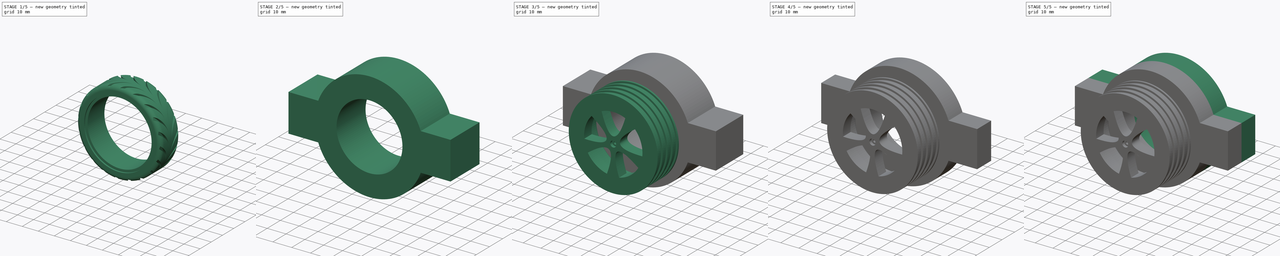
[diagram: build sequence overview — one tinted view per stage of 5, left to right]
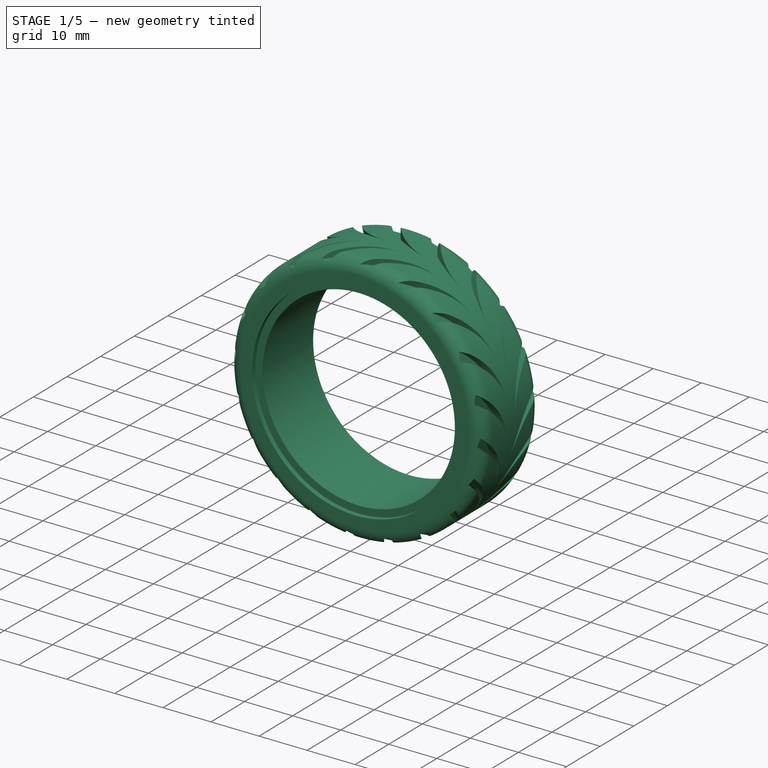
[diagram: stage 1 of 5 — iso view after this stage's code; geometry added in this stage tinted green]
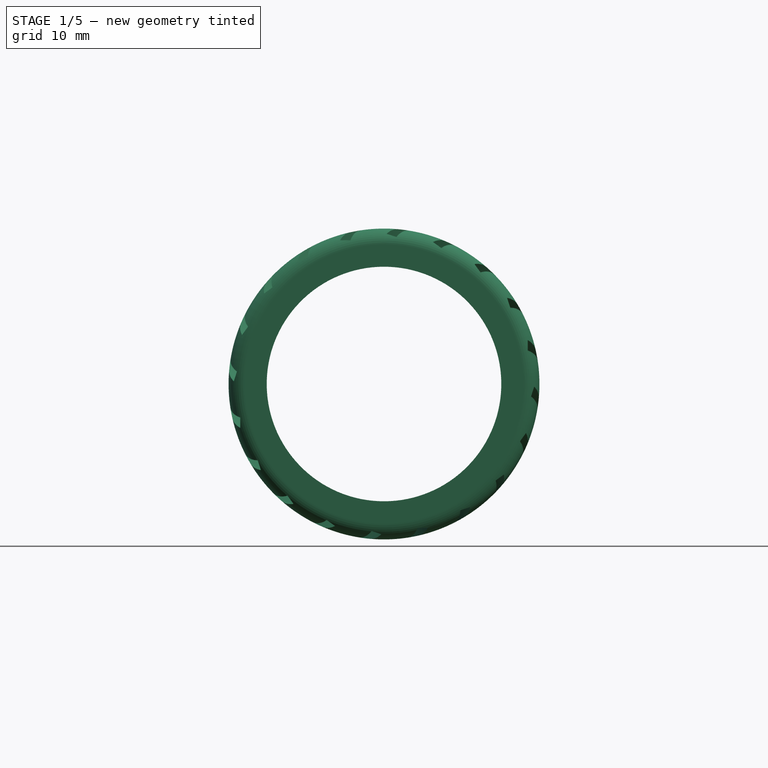
[diagram: stage 1 of 5 — front view after this stage's code; geometry added in this stage tinted green]
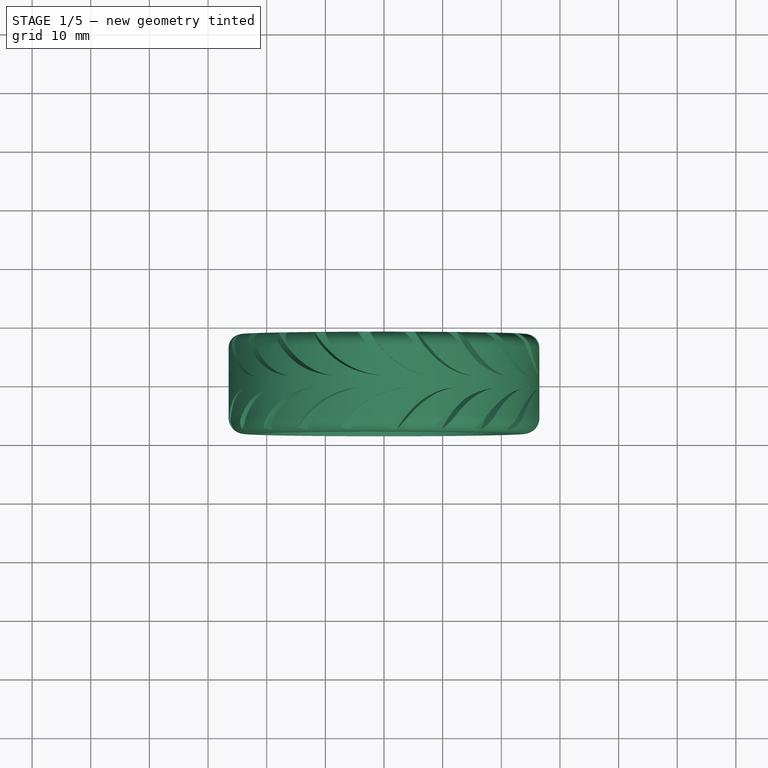
[diagram: stage 1 of 5 — top view after this stage's code; geometry added in this stage tinted green]
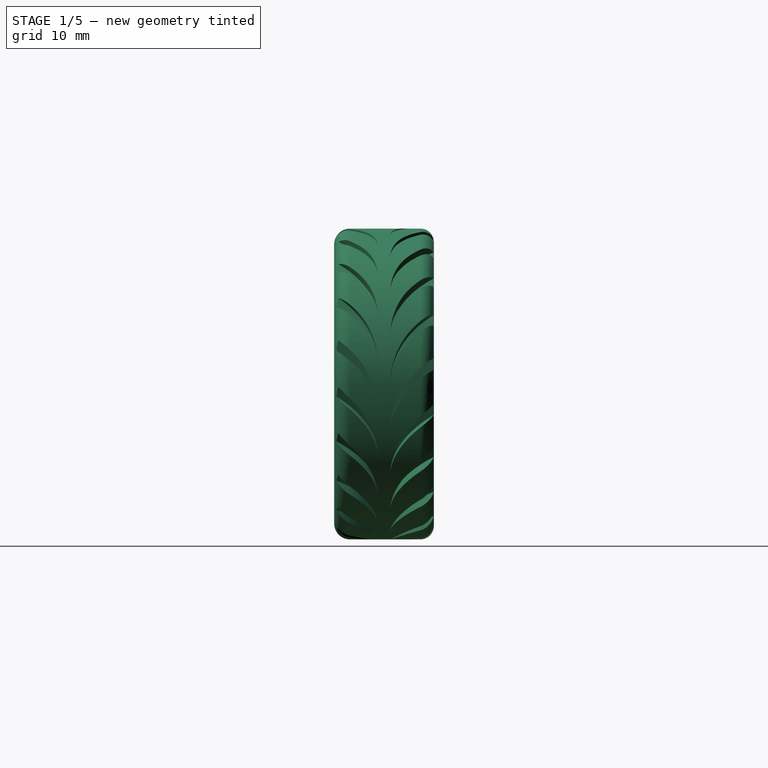
[diagram: stage 1 of 5 — right view after this stage's code; geometry added in this stage tinted green]
FCSTD DOCUMENT  (FreeCAD 0.18R16146 (Git))
Label: 03_MinibotTyre
License: All rights reserved
LicenseURL: http://en.wikipedia.org/wiki/All_rights_reserved
objects: Part::Cut×6, Sketcher::SketchObject×5, Part::MultiFuse×5, Part::Box×5, PartDesign::Body×4, PartDesign::FeatureBase×3, PartDesign::Revolution×2, PartDesign::Pad×2, Part::Cylinder×2, Part::Feature×2, Part::Chamfer×2, PartDesign::Pocket×1, PartDesign::PolarPattern×1, Part::FeaturePython×1, Part::Part2DObjectPython×1, App::DocumentObjectGroup×1
note: 47 computed .brp shape members not serialized (recipe doc carries the construction recipe); baked Part::Feature solids carry a one-line shape summary decoded from their .brp

FEATURE [PartDesign::Body] Body007  label="Wheel"
  Group = -> [Sketch009,Revolution,Sketch010,Pocket,PolarPattern]
  Origin = -> Origin007
  Tip = -> PolarPattern
FEATURE [Sketcher::SketchObject] Sketch011
  MapMode = 5
  Placement = pos=(0,0,0) rot=(0.57735,0.57735,0.57735;2.0944rad)
  Support = -> [YZ_Plane]
  sketch-geometry (10):
    g0: LineSegment StartX=-31 StartY=20 StartZ=0 EndX=-16 EndY=20 EndZ=0
    g1: LineSegment StartX=-15 StartY=21.5 StartZ=0 EndX=-15 EndY=24.1984 EndZ=0
    g2: LineSegment StartX=-17.3016 StartY=26.5 StartZ=0 EndX=-29.3016 EndY=26.5 EndZ=0
    g3: LineSegment StartX=-32 StartY=23.8016 StartZ=0 EndX=-32 EndY=21.5 EndZ=0
    g4: LineSegment StartX=-32 StartY=21.5 StartZ=0 EndX=-31 EndY=21.5 EndZ=0
    g5: LineSegment StartX=-31 StartY=21.5 StartZ=0 EndX=-31 EndY=20 EndZ=0
    g6: LineSegment StartX=-15 StartY=21.5 StartZ=0 EndX=-16 EndY=21.5 EndZ=0
    g7: LineSegment StartX=-16 StartY=21.5 StartZ=0 EndX=-16 EndY=20 EndZ=0
    g8: ArcOfCircle CenterX=-29.3016 CenterY=23.8016 CenterZ=0 NormalX=0 NormalY=0 NormalZ=1 AngleXU=0 Radius=2.69841 StartAngle=1.5708 EndAngle=3.14159
    g9: ArcOfCircle CenterX=-17.3016 CenterY=24.1984 CenterZ=0 NormalX=0 NormalY=0 NormalZ=1 AngleXU=0 Radius=2.30159 StartAngle=0 EndAngle=1.5708
  constraints (24):
    c: Horizontal(g0)
    c: Horizontal(g2)
    c: Vertical(g1)
    c: Vertical(g3)
    c: Coincident(g4,g5)
    c: Horizontal(g4)
    c: Vertical(g5)
    c: Coincident(g6,g7)
    c: Horizontal(g6)
    c: Vertical(g7)
    c: PointOnObject(g7,g0)
    c: Coincident(g0,g5)
    c: Coincident(g3,g4)
    c: PointOnObject(g1,g6)
    c: PointOnObject(g0,g7)
    c: Tangent(g3,g8) = -1.5708
    c: Tangent(g2,g8) = -1.5708
    c: Tangent(g2,g9) = -1.5708
    c: Tangent(g1,g9) = -1.5708
    c: DistanceX(g1) = -15
    c: DistanceY(g1) = 21.5
    c: DistanceX(g3) = -32
    c: DistanceY(g3) = 21.5
    c: DistanceY(g0) = 20
FEATURE [PartDesign::Revolution] Revolution001
  Angle = 360
  Axis = (0,1,0)
  Base = (0,0,0)
  Placement = pos=(0,0,0) rot=(0.57735,0.57735,0.57735;2.0944rad)
  Profile = -> Sketch011
  ReferenceAxis = -> Sketch011 [H_Axis]
FEATURE [PartDesign::Body] Body
  Group = -> [Sketch011,Revolution001]
  Origin = -> Origin
  Placement = pos=(0,23.5,0) rot=(0,0,1;0rad)
  Tip = -> Revolution001
FEATURE [Sketcher::SketchObject] Sketch012
  MapMode = 5
  Support = -> [XY_Plane008]
  sketch-geometry (26):
    g0: Circle [constr] CenterX=0 CenterY=0 CenterZ=0 NormalX=0 NormalY=0 NormalZ=1 AngleXU=0 Radius=1
    g1: Circle [constr] CenterX=8.3308 CenterY=0.531752 CenterZ=0 NormalX=0 NormalY=0 NormalZ=1 AngleXU=0 Radius=1
    g2: Circle [constr] CenterX=13 CenterY=8.37509 CenterZ=0 NormalX=0 NormalY=0 NormalZ=1 AngleXU=0 Radius=1
    g3: BSplineCurve PolesCount=3 KnotsCount=2 Degree=2 IsPeriodic=0
    g4: GeomPoint [constr] X=0 Y=0 Z=0
    g5: GeomPoint [constr] X=13 Y=8.37509 Z=0
    g6: Circle [constr] CenterX=0 CenterY=0 CenterZ=0 NormalX=0 NormalY=0 NormalZ=1 AngleXU=0 Radius=1
    g7: Circle [constr] CenterX=6.3308 CenterY=0.531753 CenterZ=0 NormalX=0 NormalY=0 NormalZ=1 AngleXU=0 Radius=1
    g8: Circle [constr] CenterX=11 CenterY=8.37509 CenterZ=0 NormalX=0 NormalY=0 NormalZ=1 AngleXU=0 Radius=1
    g9: BSplineCurve PolesCount=3 KnotsCount=2 Degree=2 IsPeriodic=0
    g10: GeomPoint [constr] X=0 Y=0 Z=0
    g11: GeomPoint [constr] X=11 Y=8.37509 Z=0
    g12: LineSegment StartX=11 StartY=8.37509 StartZ=0 EndX=13 EndY=8.37509 EndZ=0
    g13: GeomPoint [constr] X=11 Y=-8.37509 Z=0
    g14: Circle [constr] CenterX=3.5 CenterY=0.002609 CenterZ=0 NormalX=0 NormalY=0 NormalZ=1 AngleXU=0 Radius=1
    g15: Circle [constr] CenterX=11.8308 CenterY=-0.529143 CenterZ=0 NormalX=0 NormalY=0 NormalZ=1 AngleXU=0 Radius=1
    g16: Circle [constr] CenterX=16.5 CenterY=-8.37248 CenterZ=0 NormalX=0 NormalY=0 NormalZ=1 AngleXU=0 Radius=1
    g17: BSplineCurve PolesCount=3 KnotsCount=2 Degree=2 IsPeriodic=0
    g18: GeomPoint [constr] X=3.5 Y=0.002609 Z=0
    g19: GeomPoint [constr] X=16.5 Y=-8.37248 Z=0
    g20: Circle [constr] CenterX=3.5 CenterY=0.002609 CenterZ=0 NormalX=0 NormalY=0 NormalZ=1 AngleXU=0 Radius=1
    g21: Circle [constr] CenterX=9.8308 CenterY=-0.529144 CenterZ=0 NormalX=0 NormalY=0 NormalZ=1 AngleXU=0 Radius=1
    g22: Circle [constr] CenterX=14.5 CenterY=-8.37248 CenterZ=0 NormalX=0 NormalY=0 NormalZ=1 AngleXU=0 Radius=1
    g23: BSplineCurve PolesCount=3 KnotsCount=2 Degree=2 IsPeriodic=0
    g24: GeomPoint [constr] X=14.5 Y=-8.37248 Z=0
    g25: LineSegment StartX=14.5 StartY=-8.37248 StartZ=0 EndX=16.5 EndY=-8.37248 EndZ=0
  constraints (20):
    c: Coincident(g8,g9)
    c: Coincident(g8,g11)
    c: Coincident(g8,g12)
    c: Coincident(g2,g3)
    c: Coincident(g2,g5)
    c: Coincident(g2,g12)
    c: Coincident(g0,g3)
    c: Coincident(g0,g6)
    c: Coincident(g0,g9)
    c: Coincident(g0,g10)
    c: Coincident(g14,g17)
    c: Coincident(g14,g18)
    c: Coincident(g14,g20)
    c: Coincident(g14,g23)
    c: Coincident(g22,g23)
    c: Coincident(g22,g24)
    c: Coincident(g22,g25)
    c: Coincident(g16,g17)
    c: Coincident(g16,g19)
    c: Coincident(g16,g25)
FEATURE [Sketcher::SketchObject] Sketch013
  MapMode = 5
  Support = -> [XY_Plane009]
  sketch-geometry (11):
    g0: Circle [constr] CenterX=0 CenterY=0 CenterZ=0 NormalX=0 NormalY=0 NormalZ=1 AngleXU=0 Radius=1
    g1: Circle [constr] CenterX=13 CenterY=8.37509 CenterZ=0 NormalX=0 NormalY=0 NormalZ=1 AngleXU=0 Radius=1
    g2: BSplineCurve PolesCount=3 KnotsCount=2 Degree=2 IsPeriodic=0
    g3: GeomPoint [constr] X=0 Y=0 Z=0
    g4: GeomPoint [constr] X=13 Y=8.37509 Z=0
    g5: Circle [constr] CenterX=0 CenterY=0 CenterZ=0 NormalX=0 NormalY=0 NormalZ=1 AngleXU=0 Radius=1
    g6: Circle [constr] CenterX=11 CenterY=8.37509 CenterZ=0 NormalX=0 NormalY=0 NormalZ=1 AngleXU=0 Radius=1
    g7: BSplineCurve PolesCount=3 KnotsCount=2 Degree=2 IsPeriodic=0
    g8: GeomPoint [constr] X=0 Y=0 Z=0
    g9: GeomPoint [constr] X=11 Y=8.37509 Z=0
    g10: LineSegment StartX=11 StartY=8.37509 StartZ=0 EndX=13 EndY=8.37509 EndZ=0
  constraints (10):
    c: Coincident(g6,g7)
    c: Coincident(g6,g9)
    c: Coincident(g6,g10)
    c: Coincident(g1,g2)
    c: Coincident(g1,g4)
    c: Coincident(g1,g10)
    c: Coincident(g0,g2)
    c: Coincident(g0,g5)
    c: Coincident(g0,g7)
    c: Coincident(g0,g8)
FEATURE [PartDesign::Pad] Pad
  Length = 2
  Length2 = 100
  Profile = -> Sketch012
  Type = 0
FEATURE [PartDesign::Body] Body008
  Group = -> [Sketch012,Pad]
  Origin = -> Origin008
  Placement = pos=(0,-1,2.5) rot=(0,0,1;0rad)
  Tip = -> Pad
FEATURE [PartDesign::Pad] Pad001
  Length = 2
  Length2 = 100
  Profile = -> Sketch013
  Type = 0
FEATURE [PartDesign::Body] Body009
  Group = -> [Sketch013,Pad001]
  Origin = -> Origin009
  Placement = pos=(0,1,2.5) rot=(0,0,1;0rad)
  Tip = -> Pad001
FEATURE [Part::MultiFuse] Fusion
  Placement = pos=(-8,0,-29) rot=(0,0,1;0rad)
  Shapes = -> [Body008,Body009]
FEATURE [Part::FeaturePython] Array  # Draft array (typed FeaturePython)
  Angle = 360
  ArrayType = 1
  Axis = (0,1,0)
  Base = -> Fusion
  Center = (0,0,0)
  Fuse = false
  IntervalAxis = (0,0,0)
  IntervalX = (1,0,0)
  IntervalY = (0,1,0)
  IntervalZ = (0,0,0)
  NumberPolar = 20
  NumberX = 0
  NumberY = 0
  NumberZ = 0
FEATURE [Part::Cut] Cut  label="31_Tyre"
  Base = -> Body
  Tool = -> Array
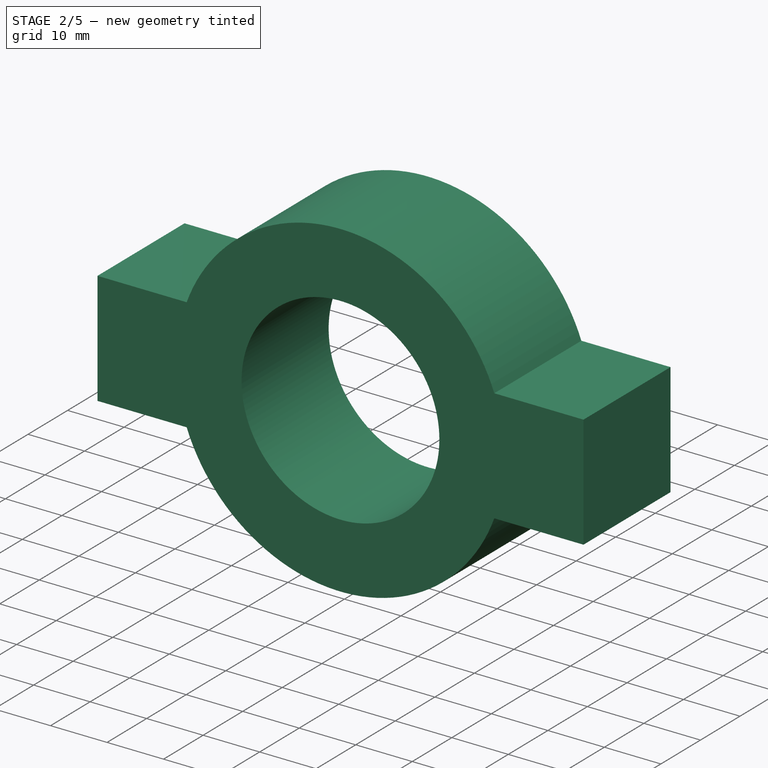
[diagram: stage 2 of 5 — iso view after this stage's code; geometry added in this stage tinted green]
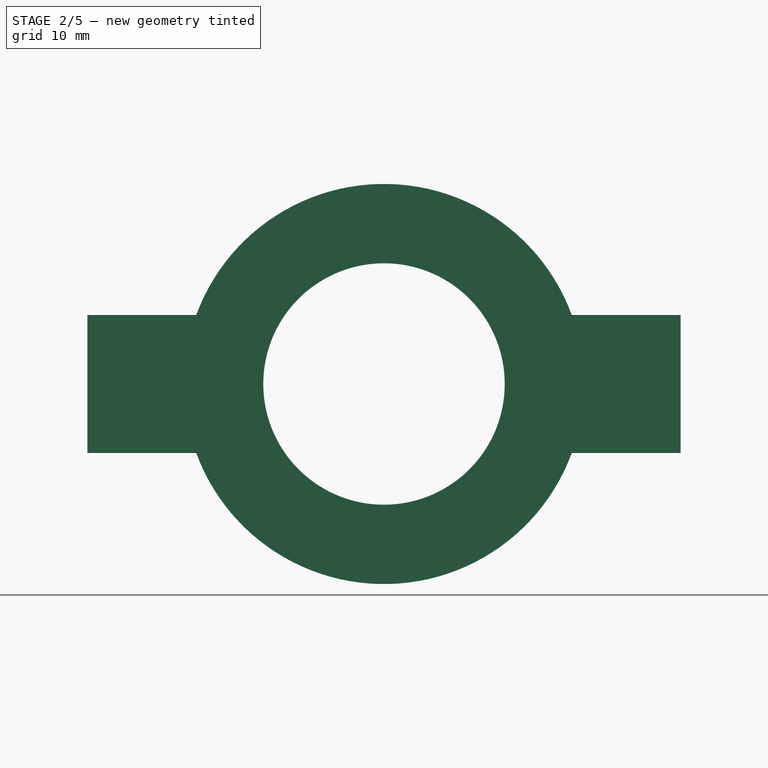
[diagram: stage 2 of 5 — front view after this stage's code; geometry added in this stage tinted green]
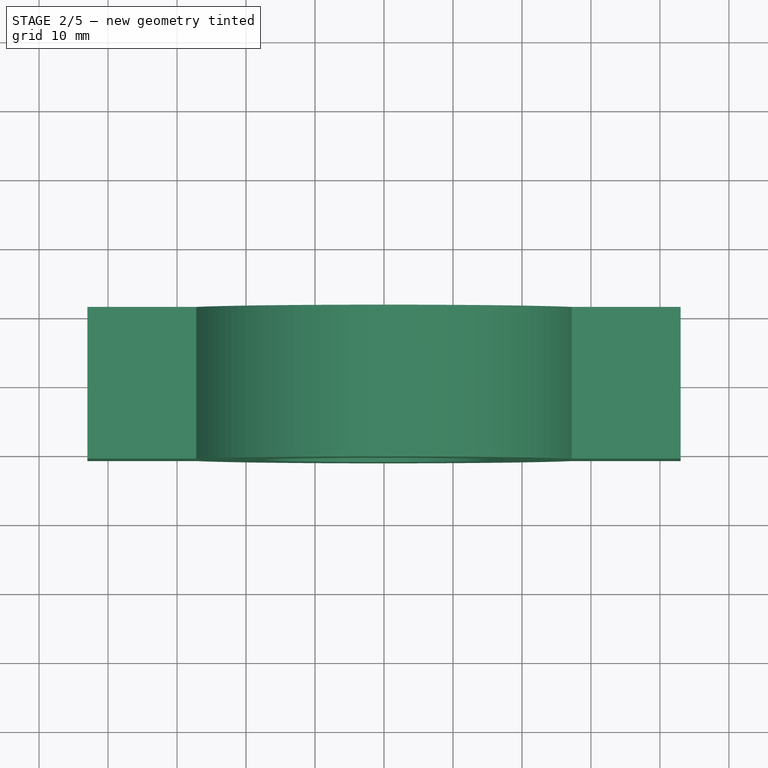
[diagram: stage 2 of 5 — top view after this stage's code; geometry added in this stage tinted green]
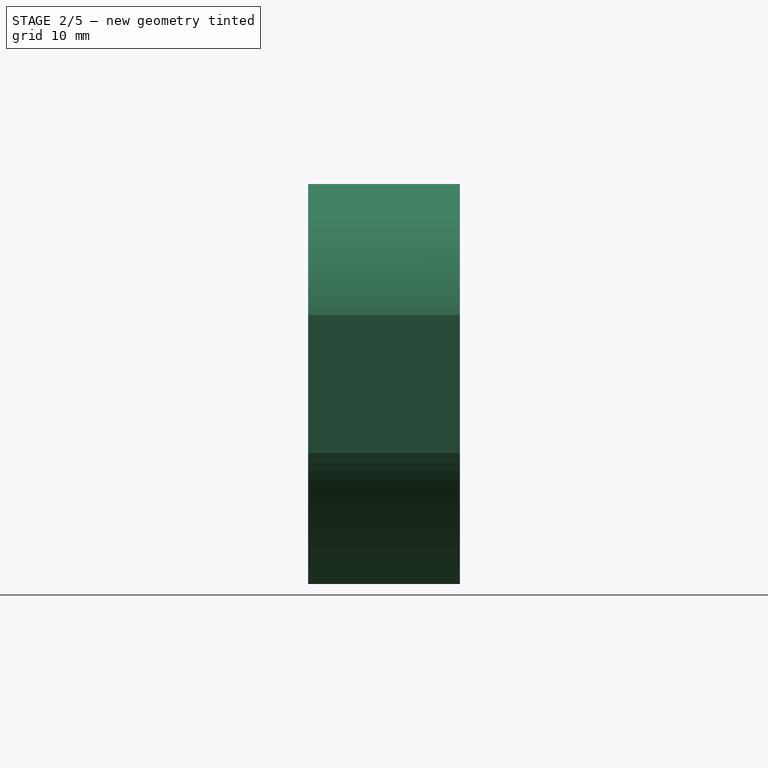
[diagram: stage 2 of 5 — right view after this stage's code; geometry added in this stage tinted green]
FEATURE [Part::Cylinder] Cylinder
  Angle = 360
  AttacherType = Attacher::AttachEngine3D
  Height = 22
  Placement = pos=(0,11,2e-15) rot=(1,0,0;1.5708rad)
  Radius = 17.5
FEATURE [Part::Part2DObjectPython] Rectangle  # Draft 2D object (typed FeaturePython)
  ChamferSize = 0
  Columns = 1
  FilletRadius = 0
  Height = 105
  Length = 118
  MakeFace = true
  Placement = pos=(-65,-3.03984e-06,-51) rot=(1,0,0;1.5708rad)
  Rows = 1
FEATURE [Part::Cylinder] Cylinder001
  Angle = 360
  AttacherType = Attacher::AttachEngine3D
  Height = 22
  Placement = pos=(0,11,-2e-15) rot=(1,0,0;1.5708rad)
  Radius = 29
FEATURE [Part::Box] Box  label="Cube"
  AttacherType = Attacher::AttachEngine3D
  Height = 20
  Length = 86
  Placement = pos=(-43,-11,-10) rot=(0,0,1;0rad)
  Width = 22
FEATURE [Part::MultiFuse] Fusion001
  Shapes = -> [Cylinder001,Box]
FEATURE [Part::Cut] Cut001  label="Cut002"
  Base = -> Fusion001
  Tool = -> Cylinder
FEATURE [PartDesign::FeatureBase] Clone
  BaseFeature = -> Cut
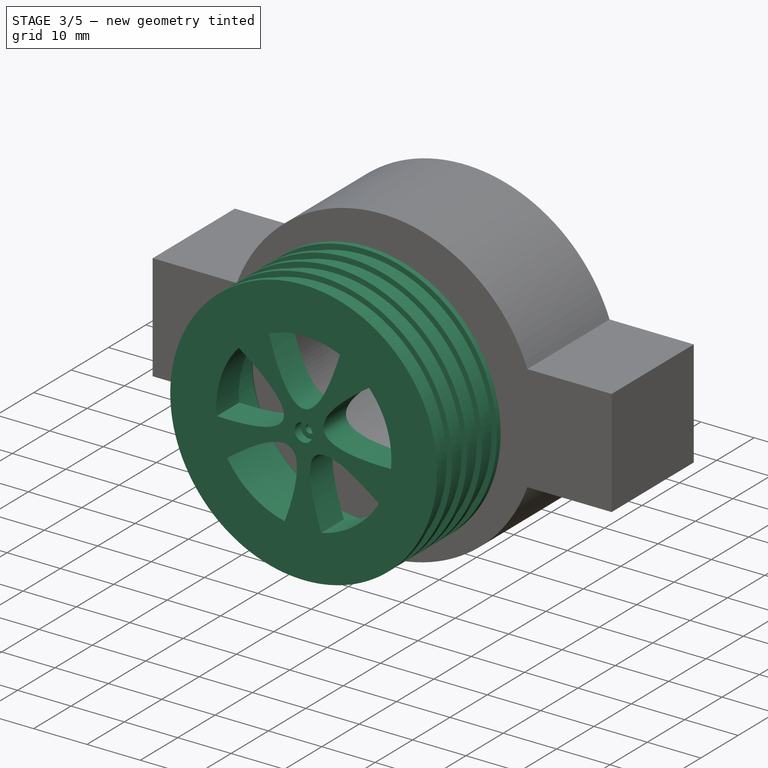
[diagram: stage 3 of 5 — iso view after this stage's code; geometry added in this stage tinted green]
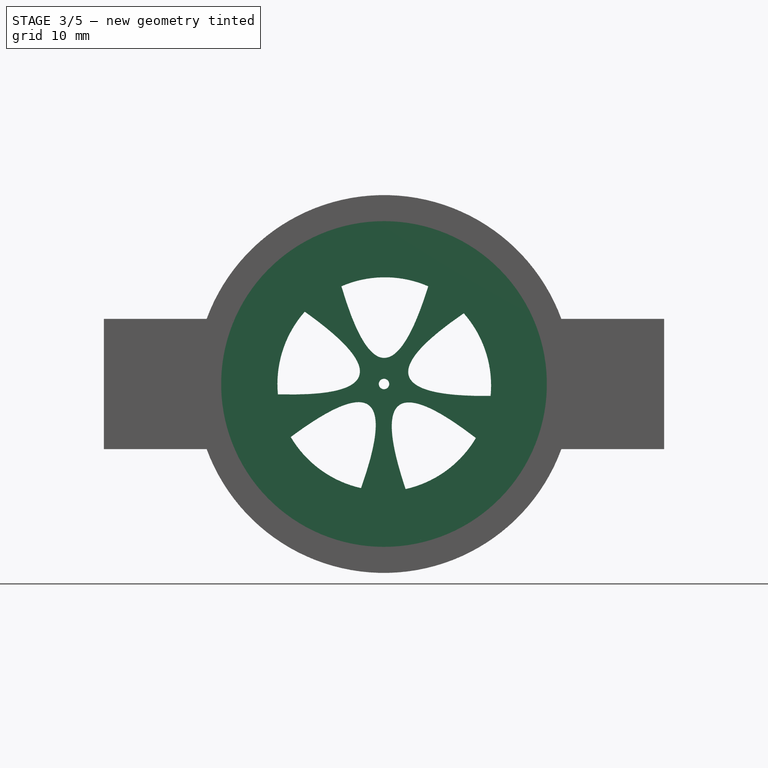
[diagram: stage 3 of 5 — front view after this stage's code; geometry added in this stage tinted green]
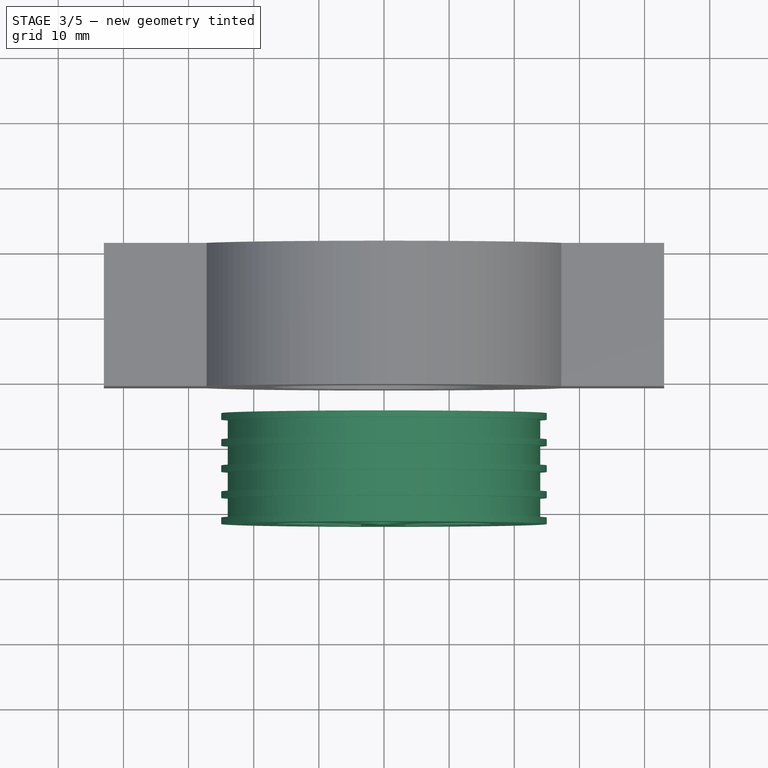
[diagram: stage 3 of 5 — top view after this stage's code; geometry added in this stage tinted green]
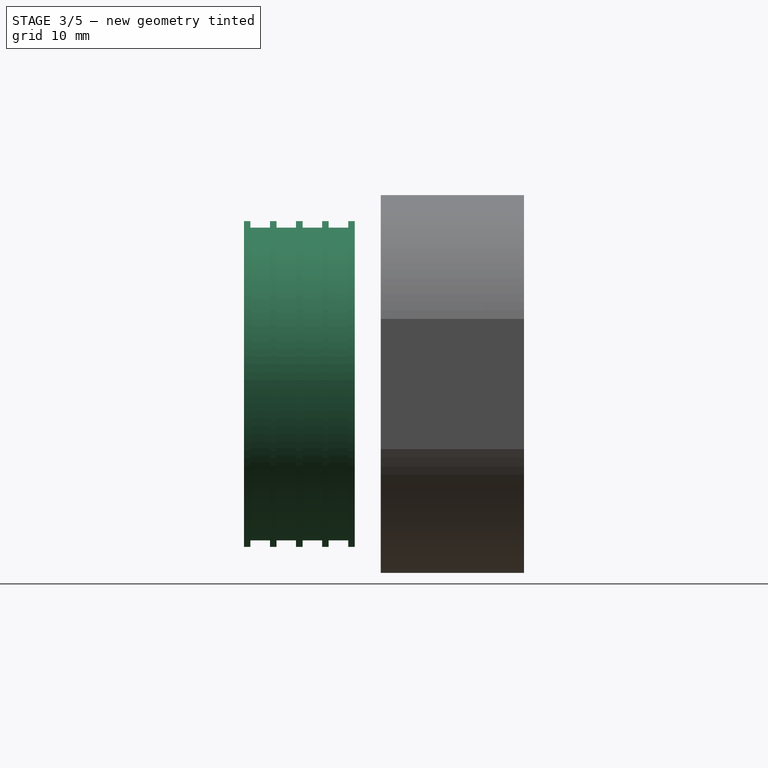
[diagram: stage 3 of 5 — right view after this stage's code; geometry added in this stage tinted green]
FEATURE [Sketcher::SketchObject] Sketch009
  MapMode = 5
  Placement = pos=(0,0,0) rot=(0.57735,0.57735,0.57735;2.0944rad)
  Support = -> [YZ_Plane007]
  sketch-geometry (30):
    g0: LineSegment StartX=-32 StartY=25 StartZ=0 EndX=-31.0063 EndY=25 EndZ=0
    g1: LineSegment StartX=-15.9986 StartY=21.0096 StartZ=0 EndX=-25.0038 EndY=21.0096 EndZ=0
    g2: GeomPoint [constr] X=-32 Y=2 Z=0
    g3: GeomPoint [constr] X=-32 Y=21.9953 Z=0
    g4: LineSegment StartX=-15.9848 StartY=25 StartZ=0 EndX=-15.9848 EndY=24 EndZ=0
    g5: LineSegment StartX=-15.9848 StartY=24 StartZ=0 EndX=-19 EndY=24 EndZ=0
    g6: LineSegment StartX=-31.0063 StartY=24 StartZ=0 EndX=-31.0063 EndY=25 EndZ=0
    g7: LineSegment StartX=-15.9848 StartY=25 StartZ=0 EndX=-14.9848 EndY=25 EndZ=0
    g8: LineSegment StartX=-32 StartY=25 StartZ=0 EndX=-32 EndY=1.7 EndZ=0
    g9: LineSegment StartX=-30.3779 StartY=0.8 StartZ=0 EndX=-28.7779 EndY=0.8 EndZ=0
    g10: LineSegment StartX=-28.7779 StartY=0.8 StartZ=0 EndX=-28.7779 EndY=2.4 EndZ=0
    g11: LineSegment StartX=-28.7779 StartY=2.4 StartZ=0 EndX=-25.9779 EndY=2.4 EndZ=0
    g12: LineSegment StartX=-25.9779 StartY=2.4 StartZ=0 EndX=-25.9779 EndY=20.0103 EndZ=0
    g13: ArcOfCircle CenterX=-24.9498 CenterY=19.9825 CenterZ=0 NormalX=0 NormalY=0 NormalZ=1 AngleXU=0 Radius=1.02846 StartAngle=1.62331 EndAngle=3.11452
    g14: ArcOfCircle CenterX=-15.9716 CenterY=21.996 CenterZ=0 NormalX=0 NormalY=0 NormalZ=1 AngleXU=0 Radius=0.986789 StartAngle=4.68499 EndAngle=6.28489
    g15: LineSegment StartX=-14.9848 StartY=25 StartZ=0 EndX=-14.9848 EndY=21.9977 EndZ=0
    g16: LineSegment StartX=-32 StartY=1.7 StartZ=0 EndX=-30.3779 EndY=1.7 EndZ=0
    g17: LineSegment StartX=-30.3779 StartY=1.7 StartZ=0 EndX=-30.3779 EndY=0.8 EndZ=0
    g18: LineSegment StartX=-28 StartY=25 StartZ=0 EndX=-27 EndY=25 EndZ=0
    g19: LineSegment StartX=-27 StartY=25 StartZ=0 EndX=-27 EndY=24 EndZ=0
    g20: LineSegment StartX=-28 StartY=24 StartZ=0 EndX=-28 EndY=25 EndZ=0
    g21: LineSegment StartX=-24 StartY=25 StartZ=0 EndX=-23 EndY=25 EndZ=0
    g22: LineSegment StartX=-23 StartY=25 StartZ=0 EndX=-23 EndY=24 EndZ=0
    g23: LineSegment StartX=-24 StartY=24 StartZ=0 EndX=-24 EndY=25 EndZ=0
    g24: LineSegment StartX=-20 StartY=25 StartZ=0 EndX=-19 EndY=25 EndZ=0
    g25: LineSegment StartX=-19 StartY=25 StartZ=0 EndX=-19 EndY=24 EndZ=0
    g26: LineSegment StartX=-20 StartY=24 StartZ=0 EndX=-20 EndY=25 EndZ=0
    g27: LineSegment StartX=-28 StartY=24 StartZ=0 EndX=-31.0063 EndY=24 EndZ=0
    g28: LineSegment StartX=-24 StartY=24 StartZ=0 EndX=-27 EndY=24 EndZ=0
    g29: LineSegment StartX=-20 StartY=24 StartZ=0 EndX=-23 EndY=24 EndZ=0
  constraints (67):
    c: Horizontal(g0)
    c: Horizontal(g1)
    c: Coincident(g4,g5)
    c: Coincident(g27,g6)
    c: Horizontal(g5)
    c: Vertical(g4)
    c: Vertical(g6)
    c: PointOnObject(g6,g0)
    c: PointOnObject(g7,g4)
    c: Coincident(g0,g6)
    c: Vertical(g8)
    c: Horizontal(g9)
    c: Vertical(g10)
    c: Coincident(g11,g10)
    c: Horizontal(g11)
    c: Coincident(g11,g12)
    c: Coincident(g12,g13)
    c: Coincident(g1,g13)
    c: Coincident(g15,g7)
    c: Coincident(g15,g14)
    c: Vertical(g15)
    c: DistanceX(g0) = -32
    c: DistanceY(g0) = 25
    c: DistanceX(g4,g7) = 1
    c: DistanceY(g4,g4) = 1
    c: Coincident(g1,g14)
    c: Vertical(g12)
    c: Coincident(g4,g7)
    c: Horizontal(g7)
    c: DistanceY(g6,g6) = 1
    c: Coincident(g9,g10)
    c: DistanceY(g9) = 0.8
    c: Coincident(g16,g17)
    c: Horizontal(g16)
    c: Vertical(g17)
    c: PointOnObject(g8,g16)
    c: Coincident(g17,g9)
    c: DistanceX(g9,g9) = 1.6
    c: DistanceY(g17,g17) = 0.9
    c: Coincident(g8,g16)
    c: DistanceX(g11,g11) = 2.8
    c: DistanceY(g11) = 2.4
    c: Coincident(g8,g0)
    c: Coincident(g18,g19)
    c: Coincident(g20,g18)
    c: Horizontal(g18)
    c: Vertical(g19)
    c: Vertical(g20)
    c: Coincident(g21,g22)
    c: Coincident(g23,g21)
    c: Horizontal(g21)
    c: Vertical(g22)
    c: Vertical(g23)
    c: Coincident(g24,g25)
    c: Coincident(g26,g24)
    c: Horizontal(g24)
    c: Vertical(g25)
    c: Vertical(g26)
    c: PointOnObject(g28,g19)
    c: PointOnObject(g27,g20)
    c: Tangent(g5,g27)
    c: Coincident(g29,g22)
    c: PointOnObject(g28,g23)
    c: Tangent(g5,g28)
    c: Coincident(g5,g25)
    c: PointOnObject(g29,g26)
    c: Tangent(g5,g29)
FEATURE [PartDesign::Revolution] Revolution
  Angle = 360
  Axis = (0,1,0)
  Base = (0,0,0)
  Placement = pos=(0,0,0) rot=(0.57735,0.57735,0.57735;2.0944rad)
  Profile = -> Sketch009
  ReferenceAxis = -> Sketch009 [H_Axis]
FEATURE [Sketcher::SketchObject] Sketch010
  Placement = pos=(-5.2,0,0) rot=(1,0,0;1.5708rad)
  sketch-geometry (4):
    g0: ArcOfParabola CenterX=5.21191 CenterY=4.0067 CenterZ=0 NormalX=0 NormalY=0 NormalZ=1 Focal=1.01065 AngleXU=1.56188 StartAngle=-6.6848 EndAngle=6.64864
    g1: GeomPoint X=5.22093 Y=5.0173 Z=0
    g2: LineSegment [constr] StartX=5.21191 StartY=4.0067 StartZ=0 EndX=5.22093 EndY=5.0173 EndZ=0
    g3: ArcOfCircle CenterX=5.32845 CenterY=-0.410138 CenterZ=0 NormalX=0 NormalY=0 NormalZ=1 AngleXU=0 Radius=16.7909 StartAngle=1.16251 EndAngle=1.97913
  constraints (6):
    c: InternalAlignment(g1,g0)
    c: Coincident(g1,g2)
    c: Coincident(g0,g2)
    c: PointOnObject(g3,g0)
    c: Coincident(g0,g3)
    c: Coincident(g3,g0)
FEATURE [PartDesign::Pocket] Pocket
  BaseFeature = -> Revolution
  Length = 5
  Length2 = 100
  Midplane = true
  Placement = pos=(0,0,0) rot=(0.57735,0.57735,0.57735;2.0944rad)
  Profile = -> Sketch010
  Type = 1
FEATURE [PartDesign::PolarPattern] PolarPattern
  Angle = 360
  Axis = -> Y_Axis007
  BaseFeature = -> Pocket
  Occurrences = 5
  Originals = -> [Pocket]
  Placement = pos=(0,0,0) rot=(0.57735,0.57735,0.57735;2.0944rad)
FEATURE [Part::Box] Box001  label="Cube001"
  AttacherType = Attacher::AttachEngine3D
  Height = 14
  Length = 8
  Placement = pos=(-40,0,-7) rot=(0,0,1;0rad)
  Width = 5
FEATURE [Part::Box] Box002  label="Cube002"
  AttacherType = Attacher::AttachEngine3D
  Height = 14
  Length = 8
  Placement = pos=(32,0,-7) rot=(0,0,1;0rad)
  Width = 5
FEATURE [Part::Cut] Cut004  label="Mold"
  Base = -> Cut001
  Tool = -> Clone
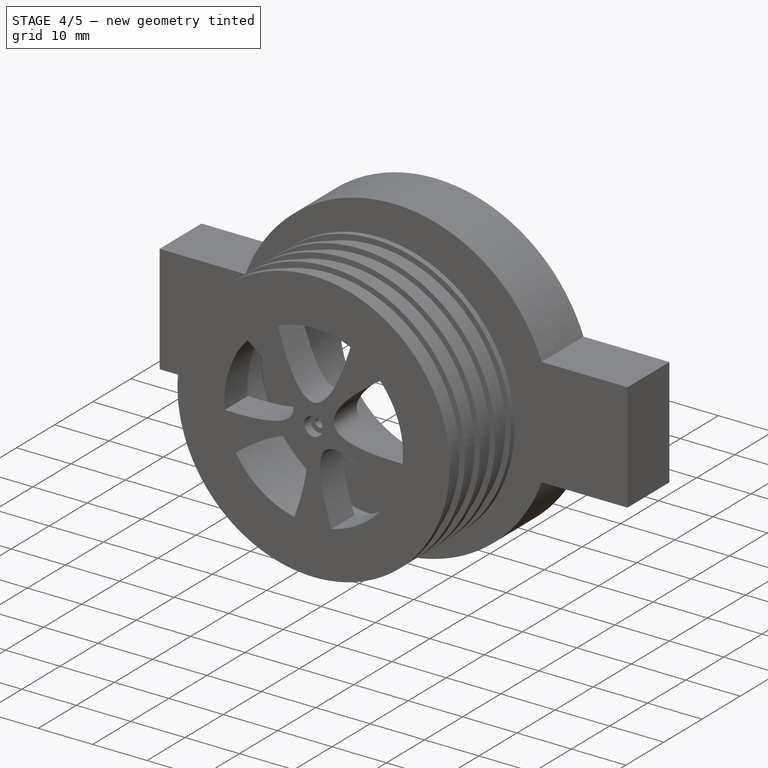
[diagram: stage 4 of 5 — iso view after this stage's code; geometry added in this stage tinted green]
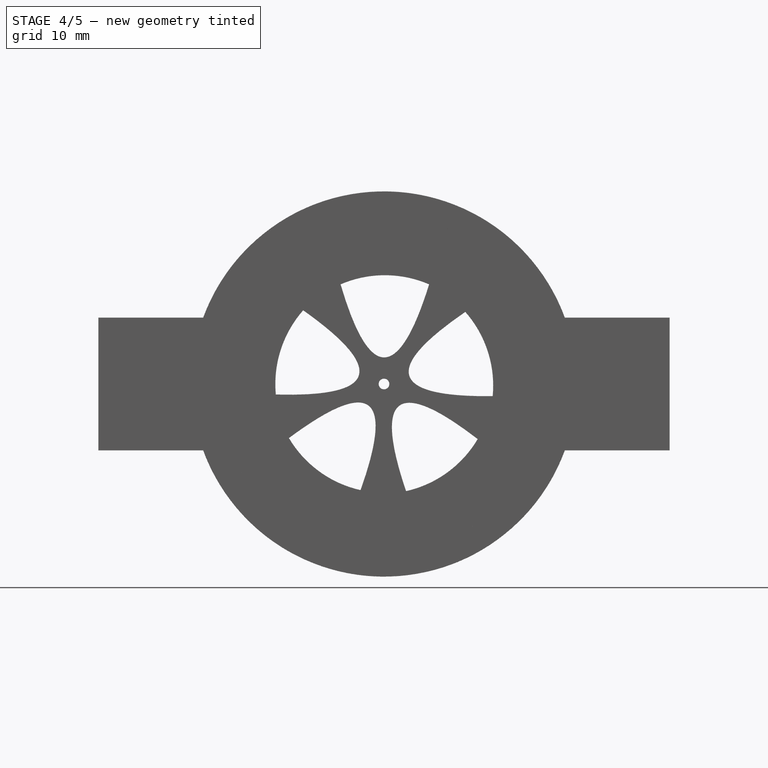
[diagram: stage 4 of 5 — front view after this stage's code; geometry added in this stage tinted green]
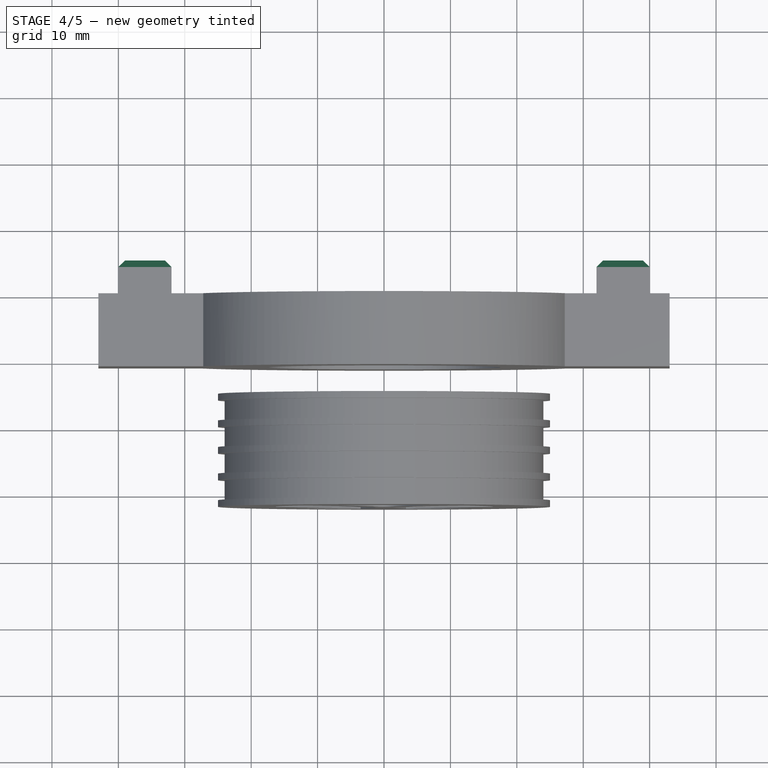
[diagram: stage 4 of 5 — top view after this stage's code; geometry added in this stage tinted green]
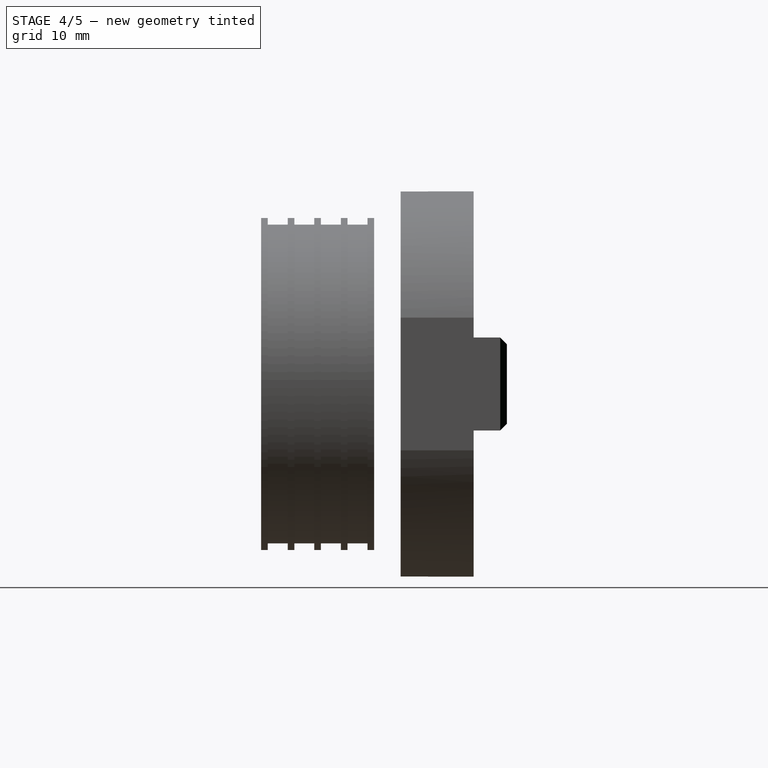
[diagram: stage 4 of 5 — right view after this stage's code; geometry added in this stage tinted green]
FEATURE [Part::MultiFuse] Fusion002
  Shapes = -> [Box002,Box001]
FEATURE [PartDesign::FeatureBase] Clone001
  BaseFeature = -> Cut004
FEATURE [Part::Feature] CutVolume
  shape: bbox 100 x 12 x 64.73 mm, 6 faces (baked)
FEATURE [Part::Cut] CutPlane
  Base = -> Clone001
  Tool = -> CutVolume
FEATURE [Part::Chamfer] Chamfer
  Base = -> Fusion002
  Edges = 4 edges r=1: [Edge15,Edge19,Edge23,Edge24]
FEATURE [Part::Chamfer] Chamfer001
  Base = -> Chamfer
  Edges = 4 edges r=1: [Edge23,Edge27,Edge31,Edge32]
FEATURE [Part::MultiFuse] Fusion004  label="33_TyreMoldPartB"
  Shapes = -> [Chamfer001,CutPlane]
FEATURE [App::DocumentObjectGroup] Group  label="External"
  Group = -> [Body007,Rectangle,Cut004]
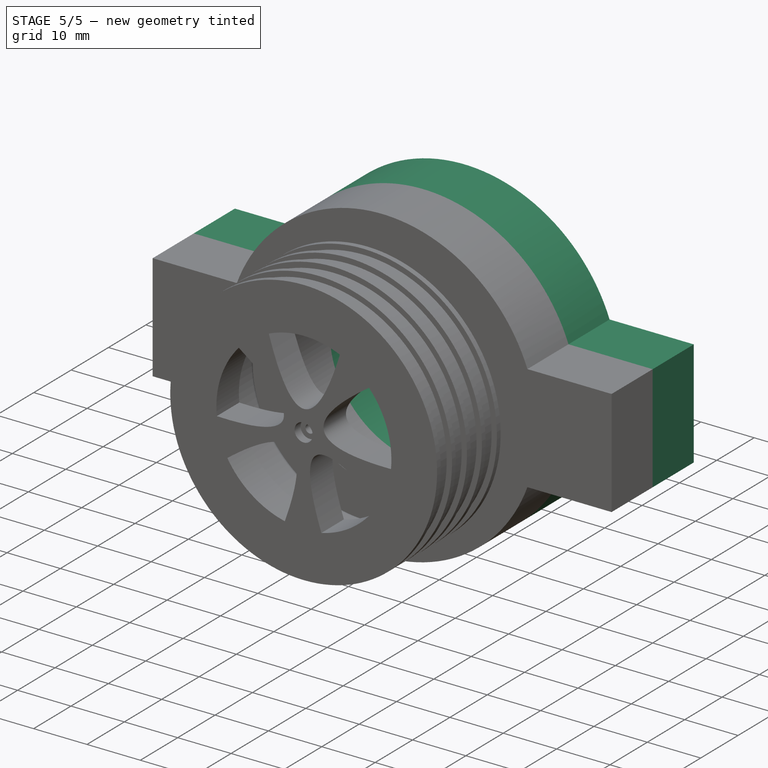
[diagram: stage 5 of 5 — iso view after this stage's code; geometry added in this stage tinted green]
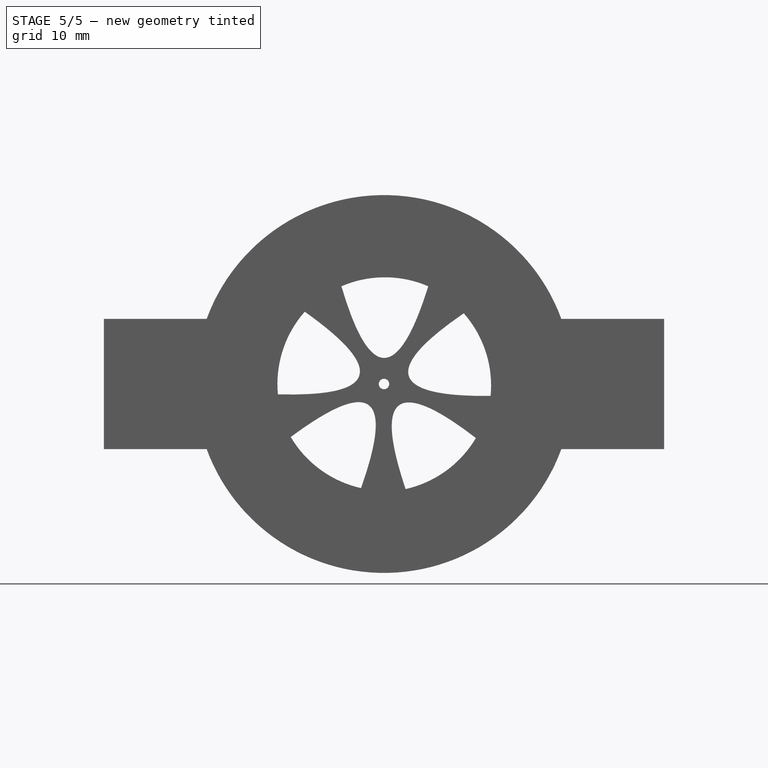
[diagram: stage 5 of 5 — front view after this stage's code; geometry added in this stage tinted green]
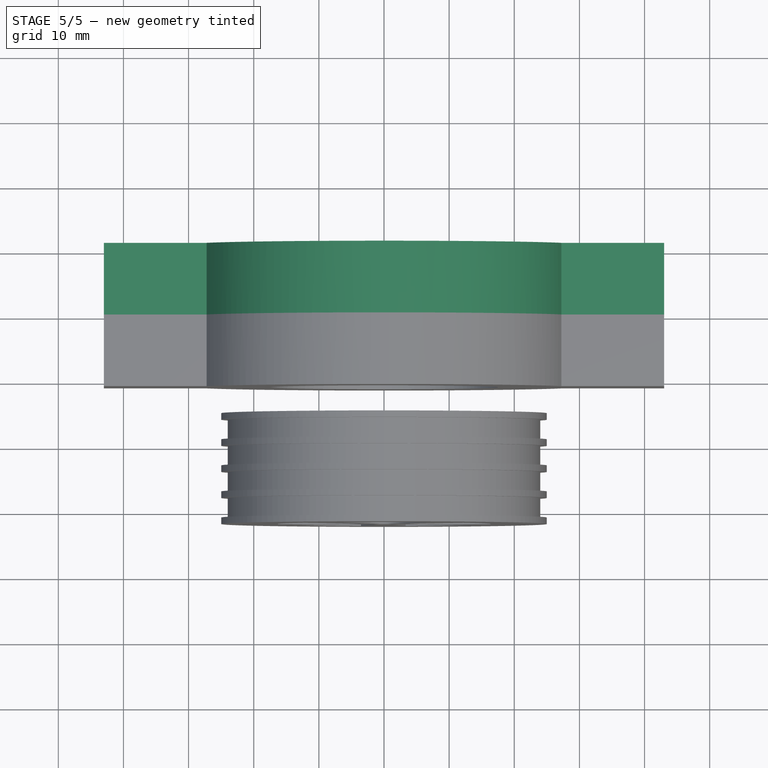
[diagram: stage 5 of 5 — top view after this stage's code; geometry added in this stage tinted green]
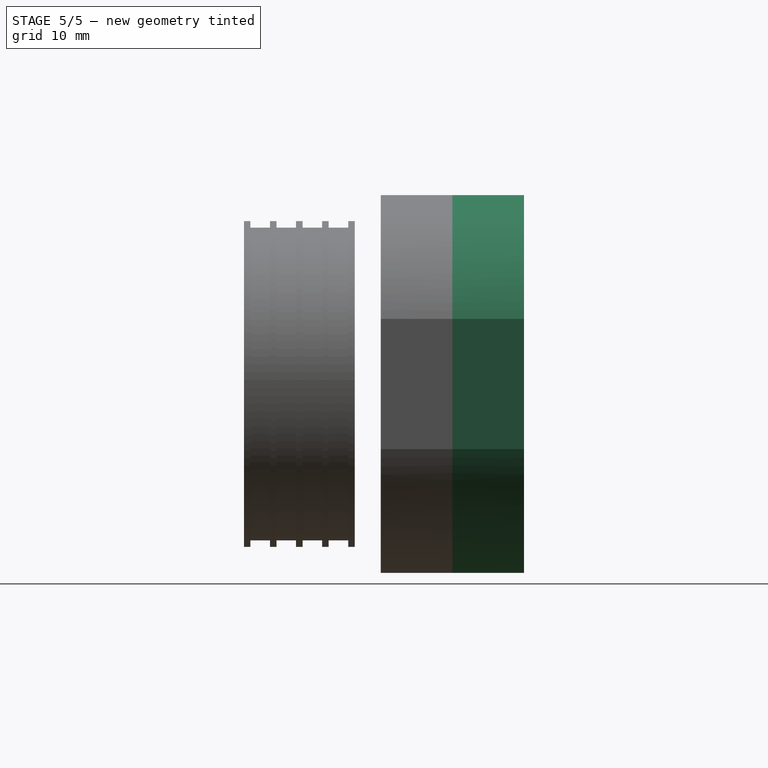
[diagram: stage 5 of 5 — right view after this stage's code; geometry added in this stage tinted green]
FEATURE [Part::Box] Box003  label="Cube003"
  AttacherType = Attacher::AttachEngine3D
  Height = 14
  Length = 8
  Placement = pos=(32,0,-7) rot=(0,0,1;0rad)
  Width = 15
FEATURE [Part::Box] Box004  label="Cube004"
  AttacherType = Attacher::AttachEngine3D
  Height = 14
  Length = 8
  Placement = pos=(-40,0,-7) rot=(0,0,1;0rad)
  Width = 15
FEATURE [Part::MultiFuse] Fusion003
  Placement = pos=(0,-1,0) rot=(0,0,1;0rad)
  Shapes = -> [Box003,Box004]
FEATURE [PartDesign::FeatureBase] Clone002
  BaseFeature = -> Cut004
FEATURE [Part::Feature] CutVolume001
  shape: bbox 100 x 12 x 64.73 mm, 6 faces (baked)
FEATURE [Part::Cut] CutPlane001
  Base = -> Clone002
  Tool = -> CutVolume001
FEATURE [Part::Cut] Cut005  label="32_TyreMoldPartA"
  Base = -> CutPlane001
  Tool = -> Fusion003
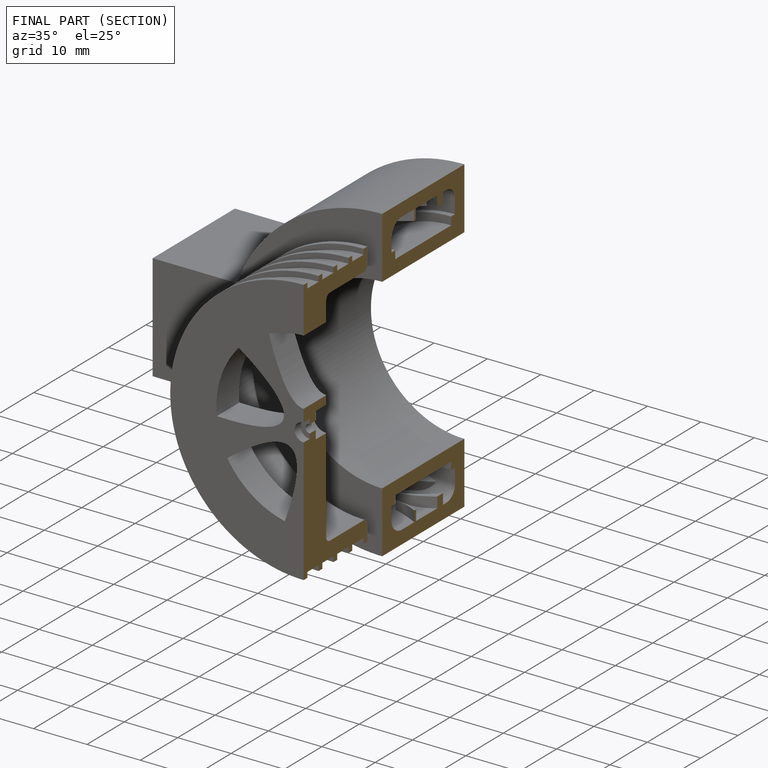
[diagram: finished part — half-section view (interior)]
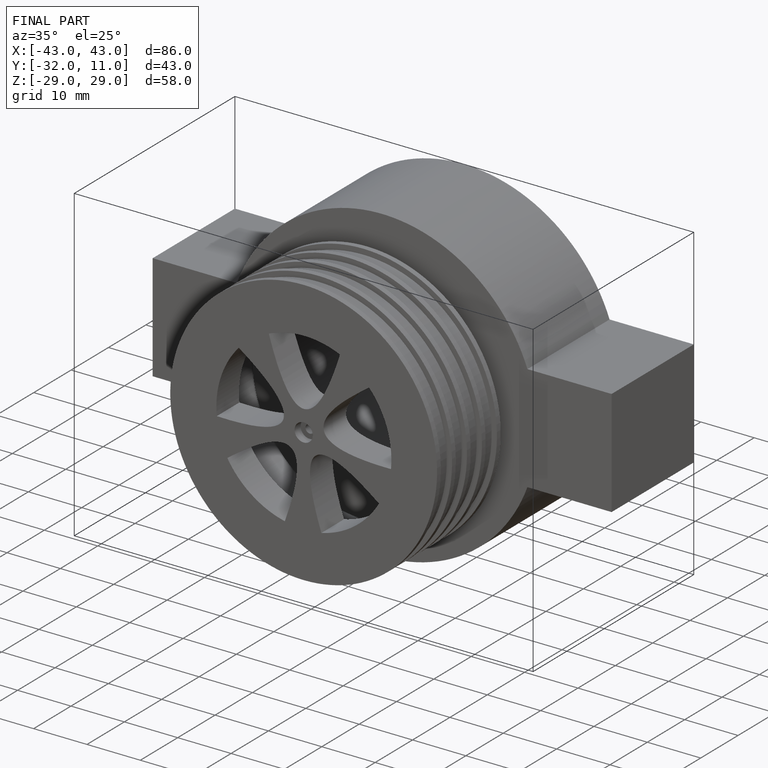
[diagram: finished part — iso view with bounding-box wireframe]
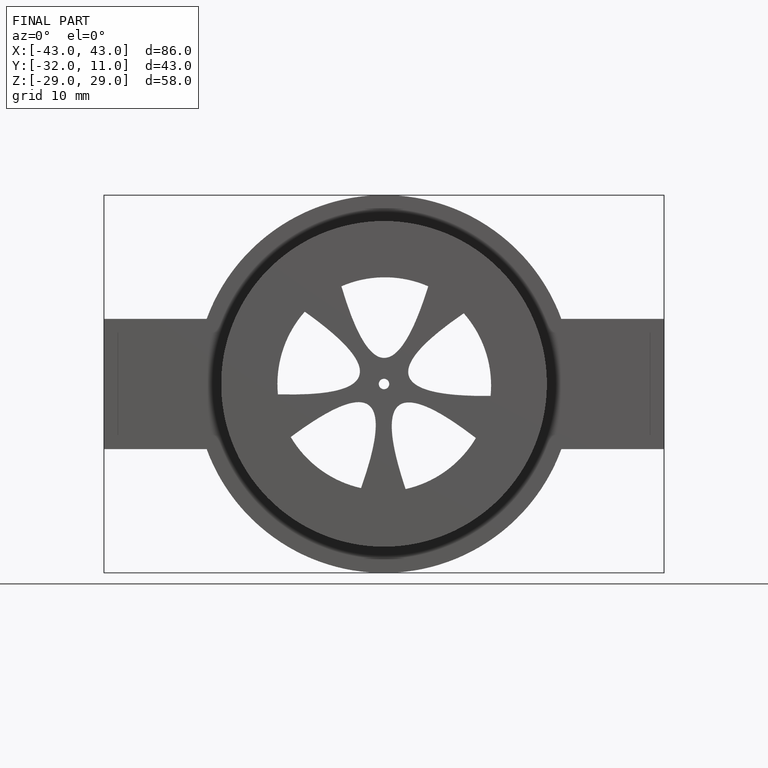
[diagram: finished part — front view with bounding-box wireframe]
